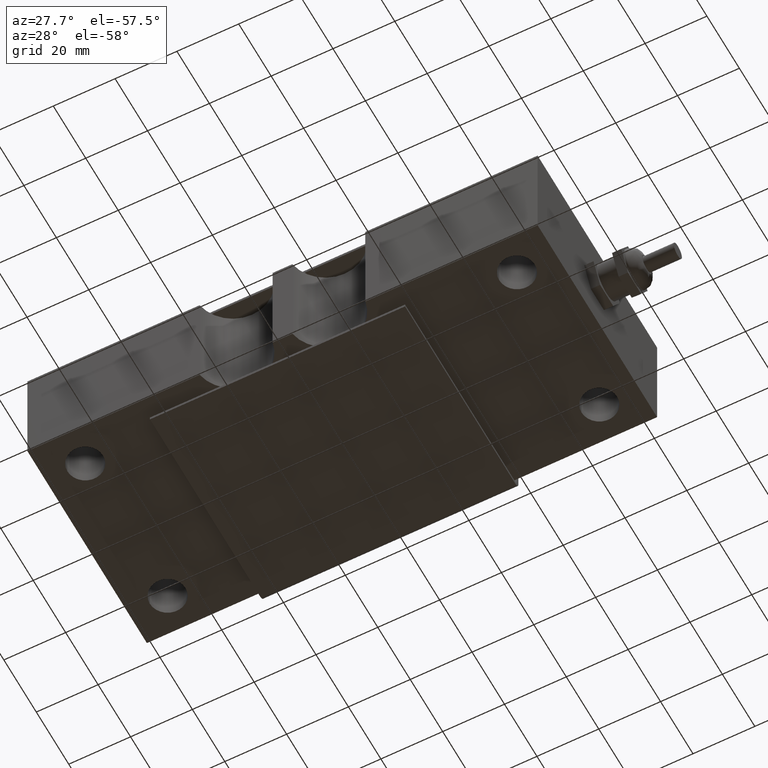
[diagram: clean part render]
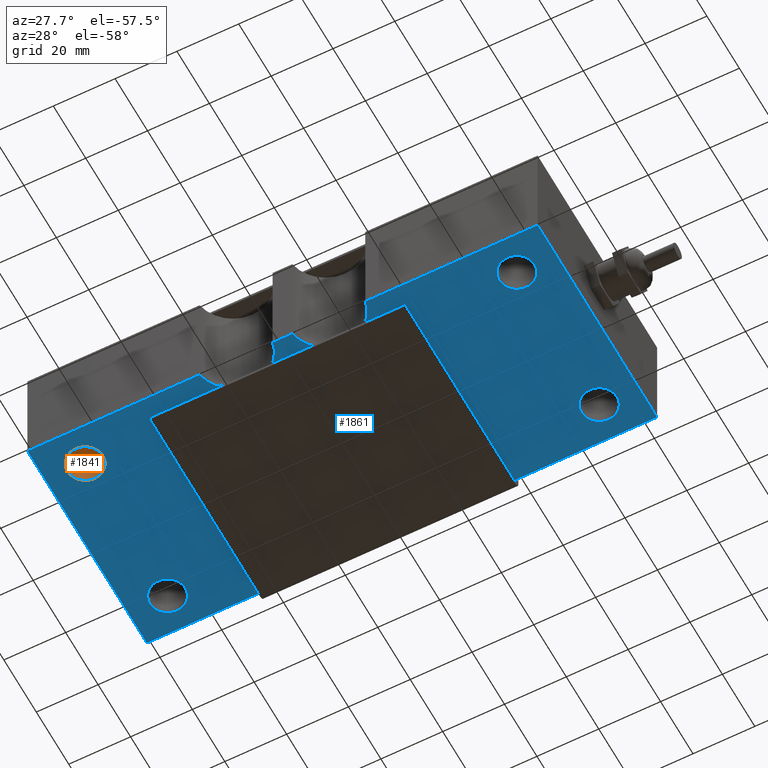
[diagram: same view with the hole feature highlighted: cylindrical wall and planar end face, labeled with their STEP entity ids]
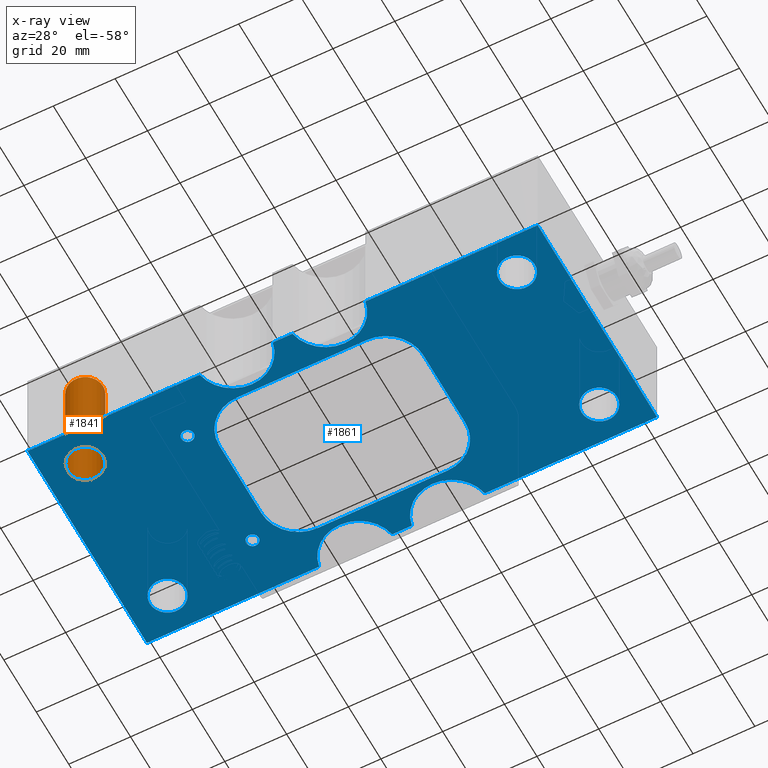
[diagram: x-ray of the same camera — body ghosted, the hole faces saturated]
A machine part, auxiliary view. The highlighted faces form one hole feature of diameter 11.5 mm: the cylindrical wall (entity #1841, orange) and its adjacent planar end face (entity #1861, blue) — they share a circular edge in the B-rep.
The next image is the same camera in x-ray (body ghosted, the hole faces saturated) — the bore reads through the body.
Wall:
#217=FACE_OUTER_BOUND('',#335,.T.);
#335=EDGE_LOOP('',(#1482,#1483,#1484,#1485));
#471=LINE('',#4176,#627);
#627=VECTOR('',#2340,0.226377952755906);
#740=CIRCLE('',#1998,0.226377952755906);
#741=CIRCLE('',#1999,0.226377952755906);
#866=VERTEX_POINT('',#4173);
#867=VERTEX_POINT('',#4175);
#1084=EDGE_CURVE('',#866,#866,#740,.T.);
#1085=EDGE_CURVE('',#866,#867,#471,.T.);
#1086=EDGE_CURVE('',#867,#867,#741,.T.);
#1482=ORIENTED_EDGE('',*,*,#1084,.F.);
#1483=ORIENTED_EDGE('',*,*,#1085,.T.);
#1484=ORIENTED_EDGE('',*,*,#1086,.F.);
#1485=ORIENTED_EDGE('',*,*,#1085,.F.);
#1760=CYLINDRICAL_SURFACE('',#1997,0.226377952755906);
#1841=ADVANCED_FACE('',(#217),#1760,.F.);
#1997=AXIS2_PLACEMENT_3D('',#4172,#2336,#2337);
#1998=AXIS2_PLACEMENT_3D('',#4174,#2338,#2339);
#1999=AXIS2_PLACEMENT_3D('',#4177,#2341,#2342);
#2336=DIRECTION('center_axis',(0.,0.,1.));
#2337=DIRECTION('ref_axis',(1.,0.,0.));
#2338=DIRECTION('center_axis',(0.,0.,1.));
#2339=DIRECTION('ref_axis',(1.,0.,0.));
#2340=DIRECTION('',(0.,0.,1.));
#2341=DIRECTION('center_axis',(0.,5.42601532534695E-16,-1.));
#2342=DIRECTION('ref_axis',(1.,0.,0.));
#4172=CARTESIAN_POINT('Origin',(-2.75,-0.999212598425195,0.));
#4173=CARTESIAN_POINT('',(-2.97637795275591,-0.999212598425195,-0.73));
#4174=CARTESIAN_POINT('Origin',(-2.75,-0.999212598425195,-0.73));
#4175=CARTESIAN_POINT('',(-2.97637795275591,-0.999212598425195,0.73));
#4176=CARTESIAN_POINT('',(-2.97637795275591,-0.999212598425195,0.));
#4177=CARTESIAN_POINT('Origin',(-2.75,-0.999212598425195,0.73));
End face:
#80=FACE_BOUND('',#357,.T.);
#81=FACE_BOUND('',#358,.T.);
#82=FACE_BOUND('',#359,.T.);
#83=FACE_BOUND('',#360,.T.);
#84=FACE_BOUND('',#361,.T.);
#85=FACE_BOUND('',#362,.T.);
#86=FACE_BOUND('',#363,.T.);
#128=PLANE('',#2041);
#237=FACE_OUTER_BOUND('',#356,.T.);
#356=EDGE_LOOP('',(#1566,#1567,#1568,#1569,#1570,#1571,#1572,#1573,#1574,
#1575,#1576,#1577));
#357=EDGE_LOOP('',(#1578));
#358=EDGE_LOOP('',(#1579));
#359=EDGE_LOOP('',(#1580));
#360=EDGE_LOOP('',(#1581,#1582,#1583,#1584,#1585,#1586,#1587,#1588));
#361=EDGE_LOOP('',(#1589));
#362=EDGE_LOOP('',(#1590));
#363=EDGE_LOOP('',(#1591));
#480=LINE('',#4220,#636);
#485=LINE('',#4234,#641);
#489=LINE('',#4246,#645);
#493=LINE('',#4258,#649);
#501=LINE('',#4285,#657);
#502=LINE('',#4288,#658);
#505=LINE('',#4294,#661);
#508=LINE('',#4299,#664);
#510=LINE('',#4302,#666);
#511=LINE('',#4304,#667);
#512=LINE('',#4305,#668);
#513=LINE('',#4306,#669);
#636=VECTOR('',#2383,0.393700787401575);
#641=VECTOR('',#2396,0.393700787401575);
#645=VECTOR('',#2408,0.393700787401575);
#649=VECTOR('',#2420,0.393700787401575);
#657=VECTOR('',#2448,0.393700787401575);
#658=VECTOR('',#2451,0.393700787401575);
#661=VECTOR('',#2456,0.393700787401575);
#664=VECTOR('',#2461,0.393700787401575);
#666=VECTOR('',#2465,0.393700787401575);
#667=VECTOR('',#2466,0.393700787401575);
#668=VECTOR('',#2467,0.393700787401575);
#669=VECTOR('',#2468,0.393700787401575);
#728=CIRCLE('',#1973,0.078740157480315);
#732=CIRCLE('',#1981,0.0787401574803148);
#740=CIRCLE('',#1998,0.226377952755906);
#743=CIRCLE('',#2002,0.47244094488189);
#745=CIRCLE('',#2005,0.47244094488189);
#746=CIRCLE('',#2007,0.226377952755906);
#748=CIRCLE('',#2010,0.226377952755906);
#750=CIRCLE('',#2013,0.47244094488189);
#752=CIRCLE('',#2017,0.47244094488189);
#754=CIRCLE('',#2021,0.472440944881891);
#756=CIRCLE('',#2025,0.472440944881891);
#758=CIRCLE('',#2029,0.47244094488189);
#760=CIRCLE('',#2032,0.47244094488189);
#762=CIRCLE('',#2035,0.226377952755906);
#853=VERTEX_POINT('',#3395);
#857=VERTEX_POINT('',#3409);
#866=VERTEX_POINT('',#4173);
#870=VERTEX_POINT('',#4182);
#871=VERTEX_POINT('',#4184);
#874=VERTEX_POINT('',#4191);
#875=VERTEX_POINT('',#4193);
#876=VERTEX_POINT('',#4197);
#878=VERTEX_POINT('',#4203);
#880=VERTEX_POINT('',#4209);
#881=VERTEX_POINT('',#4210);
#884=VERTEX_POINT('',#4218);
#885=VERTEX_POINT('',#4219);
#888=VERTEX_POINT('',#4227);
#890=VERTEX_POINT('',#4233);
#892=VERTEX_POINT('',#4239);
#894=VERTEX_POINT('',#4245);
#896=VERTEX_POINT('',#4251);
#898=VERTEX_POINT('',#4257);
#900=VERTEX_POINT('',#4266);
#901=VERTEX_POINT('',#4267);
#904=VERTEX_POINT('',#4275);
#907=VERTEX_POINT('',#4283);
#908=VERTEX_POINT('',#4287);
#910=VERTEX_POINT('',#4293);
#912=VERTEX_POINT('',#4303);
#1059=EDGE_CURVE('',#853,#853,#728,.T.);
#1065=EDGE_CURVE('',#857,#857,#732,.T.);
#1084=EDGE_CURVE('',#866,#866,#740,.T.);
#1089=EDGE_CURVE('',#871,#870,#743,.T.);
#1093=EDGE_CURVE('',#875,#874,#745,.T.);
#1095=EDGE_CURVE('',#876,#876,#746,.T.);
#1098=EDGE_CURVE('',#878,#878,#748,.T.);
#1101=EDGE_CURVE('',#880,#881,#750,.T.);
#1105=EDGE_CURVE('',#884,#885,#480,.T.);
#1109=EDGE_CURVE('',#885,#888,#752,.T.);
#1112=EDGE_CURVE('',#888,#890,#485,.T.);
#1115=EDGE_CURVE('',#890,#892,#754,.T.);
#1118=EDGE_CURVE('',#892,#894,#489,.T.);
#1121=EDGE_CURVE('',#896,#884,#756,.T.);
#1124=EDGE_CURVE('',#898,#896,#493,.T.);
#1127=EDGE_CURVE('',#894,#898,#758,.T.);
#1129=EDGE_CURVE('',#900,#901,#760,.T.);
#1133=EDGE_CURVE('',#904,#904,#762,.T.);
#1138=EDGE_CURVE('',#907,#870,#501,.T.);
#1139=EDGE_CURVE('',#875,#908,#502,.T.);
#1142=EDGE_CURVE('',#900,#910,#505,.T.);
#1145=EDGE_CURVE('',#880,#901,#508,.T.);
#1147=EDGE_CURVE('',#910,#907,#510,.T.);
#1148=EDGE_CURVE('',#912,#881,#511,.T.);
#1149=EDGE_CURVE('',#908,#912,#512,.T.);
#1150=EDGE_CURVE('',#871,#874,#513,.T.);
#1566=ORIENTED_EDGE('',*,*,#1089,.T.);
#1567=ORIENTED_EDGE('',*,*,#1138,.F.);
#1568=ORIENTED_EDGE('',*,*,#1147,.F.);
#1569=ORIENTED_EDGE('',*,*,#1142,.F.);
#1570=ORIENTED_EDGE('',*,*,#1129,.T.);
#1571=ORIENTED_EDGE('',*,*,#1145,.F.);
#1572=ORIENTED_EDGE('',*,*,#1101,.T.);
#1573=ORIENTED_EDGE('',*,*,#1148,.F.);
#1574=ORIENTED_EDGE('',*,*,#1149,.F.);
#1575=ORIENTED_EDGE('',*,*,#1139,.F.);
#1576=ORIENTED_EDGE('',*,*,#1093,.T.);
#1577=ORIENTED_EDGE('',*,*,#1150,.F.);
#1578=ORIENTED_EDGE('',*,*,#1059,.T.);
#1579=ORIENTED_EDGE('',*,*,#1065,.T.);
#1580=ORIENTED_EDGE('',*,*,#1133,.T.);
#1581=ORIENTED_EDGE('',*,*,#1118,.T.);
#1582=ORIENTED_EDGE('',*,*,#1127,.T.);
#1583=ORIENTED_EDGE('',*,*,#1124,.T.);
#1584=ORIENTED_EDGE('',*,*,#1121,.T.);
#1585=ORIENTED_EDGE('',*,*,#1105,.T.);
#1586=ORIENTED_EDGE('',*,*,#1109,.T.);
#1587=ORIENTED_EDGE('',*,*,#1112,.T.);
#1588=ORIENTED_EDGE('',*,*,#1115,.T.);
#1589=ORIENTED_EDGE('',*,*,#1098,.T.);
#1590=ORIENTED_EDGE('',*,*,#1095,.T.);
#1591=ORIENTED_EDGE('',*,*,#1084,.T.);
#1861=ADVANCED_FACE('',(#237,#80,#81,#82,#83,#84,#85,#86),#128,.T.);
#1973=AXIS2_PLACEMENT_3D('',#3396,#2282,#2283);
#1981=AXIS2_PLACEMENT_3D('',#3410,#2300,#2301);
#1998=AXIS2_PLACEMENT_3D('',#4174,#2338,#2339);
#2002=AXIS2_PLACEMENT_3D('',#4185,#2348,#2349);
#2005=AXIS2_PLACEMENT_3D('',#4194,#2356,#2357);
#2007=AXIS2_PLACEMENT_3D('',#4198,#2361,#2362);
#2010=AXIS2_PLACEMENT_3D('',#4204,#2368,#2369);
#2013=AXIS2_PLACEMENT_3D('',#4211,#2375,#2376);
#2017=AXIS2_PLACEMENT_3D('',#4228,#2389,#2390);
#2021=AXIS2_PLACEMENT_3D('',#4240,#2401,#2402);
#2025=AXIS2_PLACEMENT_3D('',#4252,#2413,#2414);
#2029=AXIS2_PLACEMENT_3D('',#4263,#2425,#2426);
#2032=AXIS2_PLACEMENT_3D('',#4268,#2431,#2432);
#2035=AXIS2_PLACEMENT_3D('',#4276,#2439,#2440);
#2041=AXIS2_PLACEMENT_3D('',#4301,#2463,#2464);
#2282=DIRECTION('center_axis',(0.,0.,1.));
#2283=DIRECTION('ref_axis',(1.,0.,0.));
#2300=DIRECTION('center_axis',(0.,0.,1.));
#2301=DIRECTION('ref_axis',(1.,0.,0.));
#2338=DIRECTION('center_axis',(0.,0.,1.));
#2339=DIRECTION('ref_axis',(1.,0.,0.));
#2348=DIRECTION('center_axis',(0.,0.,1.));
#2349=DIRECTION('ref_axis',(1.,0.,0.));
#2356=DIRECTION('center_axis',(0.,0.,1.));
#2357=DIRECTION('ref_axis',(1.,0.,0.));
#2361=DIRECTION('center_axis',(0.,0.,1.));
#2362=DIRECTION('ref_axis',(1.,0.,0.));
#2368=DIRECTION('center_axis',(0.,0.,1.));
#2369=DIRECTION('ref_axis',(1.,0.,0.));
#2375=DIRECTION('center_axis',(0.,0.,1.));
#2376=DIRECTION('ref_axis',(1.,0.,0.));
#2383=DIRECTION('',(1.,0.,0.));
#2389=DIRECTION('center_axis',(0.,0.,1.));
#2390=DIRECTION('ref_axis',(0.,-1.,0.));
#2396=DIRECTION('',(3.41607084500049E-16,1.,0.));
#2401=DIRECTION('center_axis',(0.,0.,1.));
#2402=DIRECTION('ref_axis',(1.,-1.85037170770859E-16,0.));
#2408=DIRECTION('',(-1.,0.,0.));
#2413=DIRECTION('center_axis',(0.,0.,1.));
#2414=DIRECTION('ref_axis',(-1.,3.70074341541718E-16,0.));
#2420=DIRECTION('',(-6.83214169000097E-16,-1.,0.));
#2425=DIRECTION('center_axis',(0.,0.,1.));
#2426=DIRECTION('ref_axis',(0.,1.,0.));
#2431=DIRECTION('center_axis',(0.,0.,1.));
#2432=DIRECTION('ref_axis',(1.,0.,0.));
#2439=DIRECTION('center_axis',(0.,0.,1.));
#2440=DIRECTION('ref_axis',(1.,0.,0.));
#2448=DIRECTION('',(-1.,0.,0.));
#2451=DIRECTION('',(-1.,0.,0.));
#2456=DIRECTION('',(1.,0.,0.));
#2461=DIRECTION('',(1.,0.,0.));
#2463=DIRECTION('center_axis',(0.,0.,-1.));
#2464=DIRECTION('ref_axis',(0.,1.,0.));
#2465=DIRECTION('',(0.,1.,0.));
#2466=DIRECTION('',(1.,0.,0.));
#2467=DIRECTION('',(0.,-1.,0.));
#2468=DIRECTION('',(-1.,0.,0.));
#3395=CARTESIAN_POINT('',(-1.63582677165354,-0.787401574803149,-0.73));
#3396=CARTESIAN_POINT('Origin',(-1.55708661417323,-0.787401574803149,-0.73));
#3409=CARTESIAN_POINT('',(-1.63582677165354,0.78740157480315,-0.73));
#3410=CARTESIAN_POINT('Origin',(-1.55708661417323,0.78740157480315,-0.73));
#4173=CARTESIAN_POINT('',(-2.97637795275591,-0.999212598425195,-0.73));
#4174=CARTESIAN_POINT('Origin',(-2.75,-0.999212598425195,-0.73));
#4182=CARTESIAN_POINT('',(1.05520334864629,1.45,-0.73));
#4184=CARTESIAN_POINT('',(0.12589901355843,1.45,-0.73));
#4185=CARTESIAN_POINT('Origin',(0.590551181102362,1.53543307086614,-0.73));
#4191=CARTESIAN_POINT('',(-0.125899013558431,1.45,-0.729999999999999));
#4193=CARTESIAN_POINT('',(-1.05520334864629,1.45,-0.729999999999999));
#4194=CARTESIAN_POINT('Origin',(-0.590551181102363,1.53543307086614,-0.73));
#4197=CARTESIAN_POINT('',(-2.97637795275591,0.999212598425198,-0.73));
#4198=CARTESIAN_POINT('Origin',(-2.75,0.999212598425198,-0.73));
#4203=CARTESIAN_POINT('',(2.52362204724409,0.999212598425198,-0.73));
#4204=CARTESIAN_POINT('Origin',(2.75,0.999212598425198,-0.73));
#4209=CARTESIAN_POINT('',(-0.12589901355843,-1.45,-0.729999999999999));
#4210=CARTESIAN_POINT('',(-1.05520334864629,-1.45,-0.729999999999999));
#4211=CARTESIAN_POINT('Origin',(-0.590551181102361,-1.53543307086614,-0.73));
#4218=CARTESIAN_POINT('',(-0.826771653543307,-0.984251968503937,-0.73));
#4219=CARTESIAN_POINT('',(0.826771653543307,-0.984251968503937,-0.73));
#4220=CARTESIAN_POINT('',(-0.413385826771653,-0.984251968503937,-0.73));
#4227=CARTESIAN_POINT('',(1.2992125984252,-0.511811023622047,-0.73));
#4228=CARTESIAN_POINT('Origin',(0.826771653543307,-0.511811023622047,-0.73));
#4233=CARTESIAN_POINT('',(1.2992125984252,0.511811023622046,-0.73));
#4234=CARTESIAN_POINT('',(1.2992125984252,-0.980905511811023,-0.73));
#4239=CARTESIAN_POINT('',(0.826771653543306,0.984251968503937,-0.73));
#4240=CARTESIAN_POINT('Origin',(0.826771653543306,0.511811023622046,-0.73));
#4245=CARTESIAN_POINT('',(-0.826771653543307,0.984251968503937,-0.73));
#4246=CARTESIAN_POINT('',(0.413385826771653,0.984251968503937,-0.73));
#4251=CARTESIAN_POINT('',(-1.2992125984252,-0.511811023622046,-0.73));
#4252=CARTESIAN_POINT('Origin',(-0.826771653543307,-0.511811023622046,-0.73));
#4257=CARTESIAN_POINT('',(-1.2992125984252,0.511811023622047,-0.73));
#4258=CARTESIAN_POINT('',(-1.2992125984252,-0.469094488188975,-0.73));
#4263=CARTESIAN_POINT('Origin',(-0.826771653543307,0.511811023622047,-0.73));
#4266=CARTESIAN_POINT('',(1.05520334864629,-1.45,-0.73));
#4267=CARTESIAN_POINT('',(0.12589901355843,-1.45,-0.73));
#4268=CARTESIAN_POINT('Origin',(0.590551181102362,-1.53543307086614,-0.73));
#4275=CARTESIAN_POINT('',(2.52362204724409,-0.9992125984252,-0.73));
#4276=CARTESIAN_POINT('Origin',(2.75,-0.9992125984252,-0.73));
#4283=CARTESIAN_POINT('',(3.25,1.45,-0.73));
#4285=CARTESIAN_POINT('',(0.,1.45,-0.73));
#4287=CARTESIAN_POINT('',(-3.25,1.45,-0.73));
#4288=CARTESIAN_POINT('',(0.,1.45,-0.73));
#4293=CARTESIAN_POINT('',(3.25,-1.45,-0.73));
#4294=CARTESIAN_POINT('',(0.,-1.45,-0.73));
#4299=CARTESIAN_POINT('',(0.,-1.45,-0.73));
#4301=CARTESIAN_POINT('Origin',(0.,-1.45,-0.73));
#4302=CARTESIAN_POINT('',(3.25,1.45,-0.73));
#4303=CARTESIAN_POINT('',(-3.25,-1.45,-0.73));
#4304=CARTESIAN_POINT('',(0.,-1.45,-0.73));
#4305=CARTESIAN_POINT('',(-3.25,1.45,-0.73));
#4306=CARTESIAN_POINT('',(0.,1.45,-0.73));